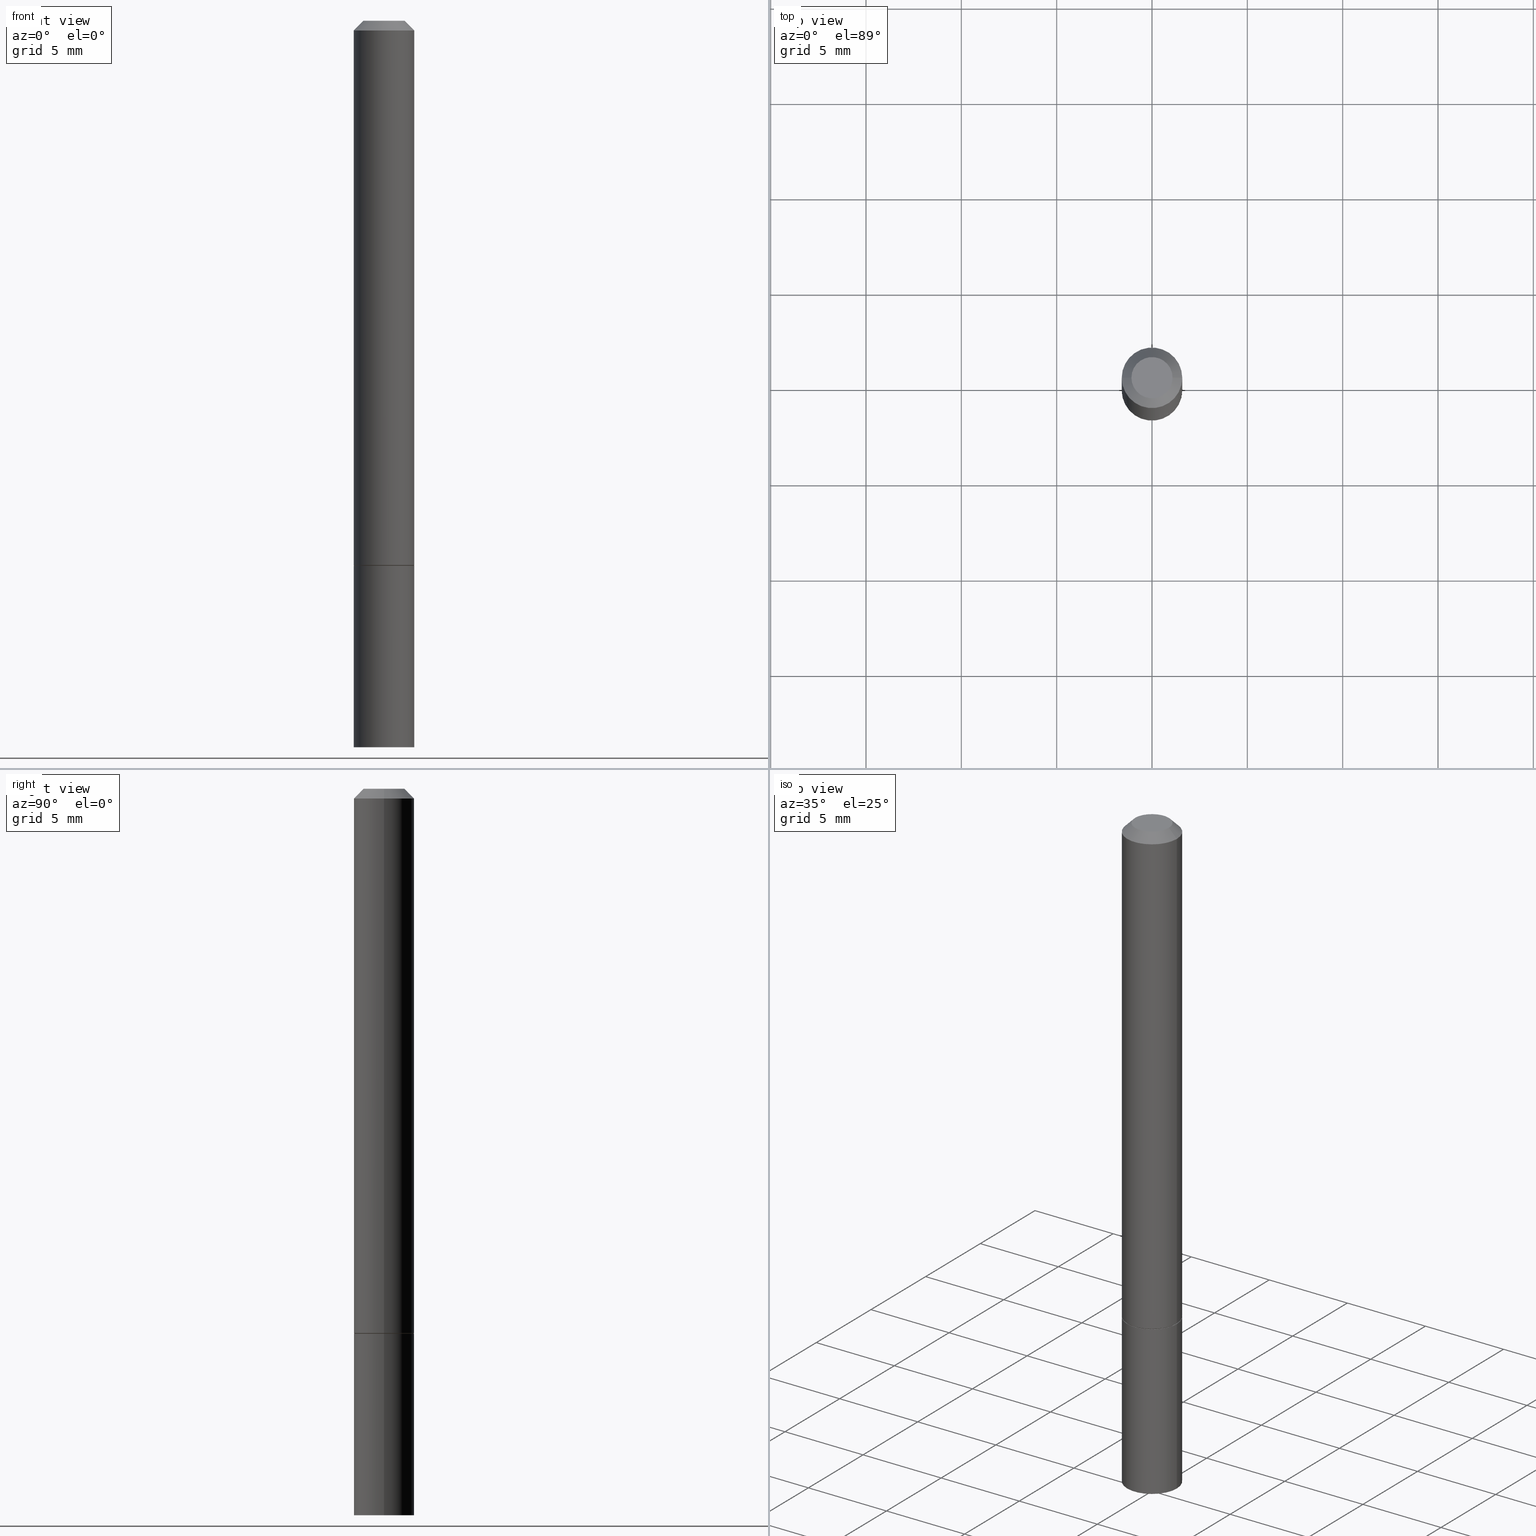
[diagram: canonical four-view strip — front | top / right | iso, engineering-drawing reading convention]
A machine part, canonical four-view strip (front | top / right | iso — engineering-drawing reading convention). The complete STEP part file that produces these views, byte-faithful:
ISO-10303-21;
HEADER;
FILE_DESCRIPTION (( 'STEP AP203' ),
    '1' );
FILE_NAME ('30377.STEP',
    '2024-02-27T12:39:30',
    ( '' ),
    ( '' ),
    'SwSTEP 2.0',
    'SolidWorks 2023',
    '' );
FILE_SCHEMA (( 'CONFIG_CONTROL_DESIGN' ));
ENDSEC;

DATA;
#1 = CARTESIAN_POINT ( 'NONE',  ( 2.967759138016655168E-16, 0.04249999999999988509, -1.761332880864859756E-16 ) ) ;
#2 = SECURITY_CLASSIFICATION_LEVEL ( 'unclassified' ) ;
#3 = DIMENSIONAL_EXPONENTS ( 1.000000000000000000, 0.000000000000000000, 0.000000000000000000, 0.000000000000000000, 0.000000000000000000, 0.000000000000000000, 0.000000000000000000 ) ;
#4 = LOCAL_TIME ( 7, 39, 30.00000000000000000, #174 ) ;
#5 = CARTESIAN_POINT ( 'NONE',  ( 4.890937612370294178E-31, -6.982962677686321191E-17, -0.02000000000000008715 ) ) ;
#6 = DATE_TIME_ROLE ( 'creation_date' ) ;
#7 = EDGE_CURVE ( 'NONE', #292, #16, #48, .T. ) ;
#8 = DIRECTION ( 'NONE',  ( -2.445468806185136597E-29, 3.491481338843145583E-15, 1.000000000000000000 ) ) ;
#9 = EDGE_CURVE ( 'NONE', #340, #45, #109, .T. ) ;
#10 = DIRECTION ( 'NONE',  ( 2.445468806185136597E-29, -3.491481338843145583E-15, -1.000000000000000000 ) ) ;
#11 = CIRCLE ( 'NONE', #43, 0.06250000000000001388 ) ;
#12 = CONICAL_SURFACE ( 'NONE', #318, 0.06150000000000001299, 0.7853981633974141952 ) ;
#13 = CARTESIAN_POINT ( 'NONE',  ( -0.06150000000000001299, -3.485634269357854820E-15, -1.124999999999999778 ) ) ;
#14 = ORIENTED_EDGE ( 'NONE', *, *, #286, .F. ) ;
#15 = CARTESIAN_POINT ( 'NONE',  ( 4.890937612370294178E-31, -6.982962677686321191E-17, -0.02000000000000008715 ) ) ;
#16 = VERTEX_POINT ( 'NONE', #194 ) ;
#17 = APPROVAL_PERSON_ORGANIZATION ( #215, #333, #233 ) ;
#18 = ORIENTED_EDGE ( 'NONE', *, *, #94, .F. ) ;
#19 = FACE_OUTER_BOUND ( 'NONE', #320, .T. ) ;
#20 = ADVANCED_FACE ( 'NONE', ( #160 ), #224, .F. ) ;
#21 = DIRECTION ( 'NONE',  ( -2.445468806185136877E-29, 3.491481338843145188E-15, 1.000000000000000000 ) ) ;
#22 = VERTEX_POINT ( 'NONE', #81 ) ;
#23 = CC_DESIGN_PERSON_AND_ORGANIZATION_ASSIGNMENT ( #342, #276, ( #258 ) ) ;
#24 = ORIENTED_EDGE ( 'NONE', *, *, #348, .T. ) ;
#25 = APPLICATION_PROTOCOL_DEFINITION ( 'international standard', 'config_control_design', 1994, #291 ) ;
#26 = FACE_OUTER_BOUND ( 'NONE', #243, .T. ) ;
#27 = ADVANCED_FACE ( 'NONE', ( #297 ), #103, .T. ) ;
#28 = CARTESIAN_POINT ( 'NONE',  ( 2.748706938152093068E-29, -3.924425024859694639E-15, -1.123999999999999888 ) ) ;
#29 = CARTESIAN_POINT ( 'NONE',  ( -0.06150000000000001299, -3.490932723706076827E-15, -1.124999999999999778 ) ) ;
#30 = DIRECTION ( 'NONE',  ( -2.445468806185136597E-29, 3.491481338843145583E-15, 1.000000000000000000 ) ) ;
#31 = VECTOR ( 'NONE', #290, 39.37007874015748143 ) ;
#32 = AXIS2_PLACEMENT_3D ( 'NONE', #102, #130, #300 ) ;
#33 =( LENGTH_UNIT ( ) NAMED_UNIT ( * ) SI_UNIT ( $, .METRE. ) );
#34 = CC_DESIGN_DATE_AND_TIME_ASSIGNMENT ( #37, #182, ( #144 ) ) ;
#35 = DIRECTION ( 'NONE',  ( -2.445468806185136597E-29, 3.491481338843145583E-15, 1.000000000000000000 ) ) ;
#36 = VERTEX_POINT ( 'NONE', #334 ) ;
#37 = DATE_AND_TIME ( #178, #343 ) ;
#38 = AXIS2_PLACEMENT_3D ( 'NONE', #260, #8, #125 ) ;
#39 = LOCAL_TIME ( 7, 39, 30.00000000000000000, #208 ) ;
#40 = SHAPE_DEFINITION_REPRESENTATION ( #205, #75 ) ;
#41 = FACE_OUTER_BOUND ( 'NONE', #46, .T. ) ;
#42 = CARTESIAN_POINT ( 'NONE',  ( 2.748706938152093068E-29, -3.924425024859694639E-15, -1.123999999999999888 ) ) ;
#43 = AXIS2_PLACEMENT_3D ( 'NONE', #301, #227, #325 ) ;
#44 = ORIENTED_EDGE ( 'NONE', *, *, #328, .F. ) ;
#45 = VERTEX_POINT ( 'NONE', #329 ) ;
#46 = EDGE_LOOP ( 'NONE', ( #67, #190 ) ) ;
#47 = DIRECTION ( 'NONE',  ( 2.445468806185136597E-29, -3.491481338843145583E-15, -1.000000000000000000 ) ) ;
#48 = LINE ( 'NONE', #217, #213 ) ;
#49 = CARTESIAN_POINT ( 'NONE',  ( -0.06249999999999988204, 3.666055405785276317E-16, -0.02000000000000008715 ) ) ;
#50 = FACE_OUTER_BOUND ( 'NONE', #347, .T. ) ;
#51 = DATE_AND_TIME ( #326, #167 ) ;
#52 = EDGE_CURVE ( 'NONE', #292, #264, #72, .T. ) ;
#53 = ADVANCED_FACE ( 'NONE', ( #172 ), #146, .T. ) ;
#54 = DIRECTION ( 'NONE',  ( 1.000000000000000000, -6.982962677686267499E-15, 4.876176775795935793E-29 ) ) ;
#55 = CONICAL_SURFACE ( 'NONE', #261, 0.06249999999999988204, 0.7853981633974473908 ) ;
#56 = CIRCLE ( 'NONE', #262, 0.06150000000000001299 ) ;
#57 = PERSON_AND_ORGANIZATION ( #281, #188 ) ;
#58 = ADVANCED_FACE ( 'NONE', ( #50 ), #250, .F. ) ;
#59 = MANIFOLD_SOLID_BREP ( 'Body-Move/Copy2[2]', #97 ) ;
#60 = PERSON_AND_ORGANIZATION ( #281, #188 ) ;
#61 = EDGE_CURVE ( 'NONE', #36, #248, #11, .T. ) ;
#62 = CALENDAR_DATE ( 2024, 27, 2 ) ;
#63 = DIRECTION ( 'NONE',  ( -2.445468806185136597E-29, 3.491481338843145583E-15, 1.000000000000000000 ) ) ;
#64 = PERSON_AND_ORGANIZATION ( #281, #188 ) ;
#65 = CARTESIAN_POINT ( 'NONE',  ( 2.751152406958278111E-29, -3.927916506198538435E-15, -1.124999999999999778 ) ) ;
#66 = DIRECTION ( 'NONE',  ( -2.445468806185136597E-29, 3.491481338843145583E-15, 1.000000000000000000 ) ) ;
#67 = ORIENTED_EDGE ( 'NONE', *, *, #272, .T. ) ;
#68 = EDGE_CURVE ( 'NONE', #207, #248, #363, .T. ) ;
#69 = DIRECTION ( 'NONE',  ( 0.7071067811865469066, -7.319954787623254468E-15, -0.7071067811865482389 ) ) ;
#70 = DIRECTION ( 'NONE',  ( 1.000000000000000000, -6.982962677686265922E-15, 4.876176775795935793E-29 ) ) ;
#71 = CC_DESIGN_PERSON_AND_ORGANIZATION_ASSIGNMENT ( #57, #204, ( #258 ) ) ;
#72 = CIRCLE ( 'NONE', #79, 0.06150000000000001299 ) ;
#73 = APPROVAL_PERSON_ORGANIZATION ( #359, #196, #118 ) ;
#74 = ORIENTED_EDGE ( 'NONE', *, *, #61, .T. ) ;
#75 = ADVANCED_BREP_SHAPE_REPRESENTATION ( '30377', ( #186, #59, #331 ), #153 ) ;
#76 = ORIENTED_EDGE ( 'NONE', *, *, #68, .F. ) ;
#77 = DIRECTION ( 'NONE',  ( -1.000000000000000000, 6.982962677686266711E-15, 0.000000000000000000 ) ) ;
#78 = ORIENTED_EDGE ( 'NONE', *, *, #141, .T. ) ;
#79 = AXIS2_PLACEMENT_3D ( 'NONE', #87, #30, #84 ) ;
#80 = CC_DESIGN_APPROVAL ( #333, ( #144 ) ) ;
#81 = CARTESIAN_POINT ( 'NONE',  ( 0.06249999999999988204, -4.986107516375831334E-16, -0.02000000000000008715 ) ) ;
#82 = LINE ( 'NONE', #29, #112 ) ;
#83 = CARTESIAN_POINT ( 'NONE',  ( 0.000000000000000000, 0.000000000000000000, 0.000000000000000000 ) ) ;
#84 = DIRECTION ( 'NONE',  ( 1.000000000000000000, -6.982962677686268288E-15, 0.000000000000000000 ) ) ;
#85 = DIRECTION ( 'NONE',  ( 0.000000000000000000, 0.000000000000000000, 1.000000000000000000 ) ) ;
#86 = UNCERTAINTY_MEASURE_WITH_UNIT (LENGTH_MEASURE( 1.000000000000000082E-05 ), #335, 'distance_accuracy_value', 'NONE');
#87 = CARTESIAN_POINT ( 'NONE',  ( 2.751152406958278111E-29, -3.927916506198538435E-15, -1.124999999999999778 ) ) ;
#88 = ADVANCED_FACE ( 'NONE', ( #26 ), #55, .T. ) ;
#89 = MECHANICAL_CONTEXT ( 'NONE', #330, 'mechanical' ) ;
#90 = DIRECTION ( 'NONE',  ( 1.000000000000000000, -6.982962677686269077E-15, 0.000000000000000000 ) ) ;
#91 = AXIS2_PLACEMENT_3D ( 'NONE', #65, #66, #90 ) ;
#92 = CC_DESIGN_SECURITY_CLASSIFICATION ( #144, ( #258 ) ) ;
#93 = ORIENTED_EDGE ( 'NONE', *, *, #206, .F. ) ;
#94 = EDGE_CURVE ( 'NONE', #105, #340, #317, .T. ) ;
#95 = CARTESIAN_POINT ( 'NONE',  ( 0.04249999999999988509, -3.950909582714363501E-16, -5.549066237130292766E-17 ) ) ;
#96 = APPROVAL_STATUS ( 'not_yet_approved' ) ;
#97 = CLOSED_SHELL ( 'NONE', ( #163, #53, #88, #229, #151, #313, #20, #192 ) ) ;
#98 = AXIS2_PLACEMENT_3D ( 'NONE', #1, #121, #202 ) ;
#99 = DIRECTION ( 'NONE',  ( -2.445468806185136877E-29, 3.491481338843145188E-15, 1.000000000000000000 ) ) ;
#100 = ORIENTED_EDGE ( 'NONE', *, *, #286, .T. ) ;
#101 = EDGE_CURVE ( 'NONE', #319, #207, #152, .T. ) ;
#102 = CARTESIAN_POINT ( 'NONE',  ( 1.357006838635785746E-45, -1.937446121494581442E-31, -5.549066237130534971E-17 ) ) ;
#103 = CYLINDRICAL_SURFACE ( 'NONE', #238, 0.06250000000000001388 ) ;
#104 = AXIS2_PLACEMENT_3D ( 'NONE', #210, #35, #177 ) ;
#105 = VERTEX_POINT ( 'NONE', #95 ) ;
#106 = DIRECTION ( 'NONE',  ( -2.445468806185136597E-29, 3.491481338843145583E-15, 1.000000000000000000 ) ) ;
#107 = EDGE_CURVE ( 'NONE', #248, #36, #356, .T. ) ;
#108 = EDGE_LOOP ( 'NONE', ( #131, #354 ) ) ;
#109 = LINE ( 'NONE', #49, #31 ) ;
#110 = PERSON_AND_ORGANIZATION_ROLE ( 'creator' ) ;
#111 = AXIS2_PLACEMENT_3D ( 'NONE', #180, #124, #278 ) ;
#112 = VECTOR ( 'NONE', #195, 39.37007874015748854 ) ;
#113 = DIRECTION ( 'NONE',  ( -1.000000000000000000, 6.982962677686265922E-15, -4.876176775795935793E-29 ) ) ;
#114 = COORDINATED_UNIVERSAL_TIME_OFFSET ( 5, 0, .BEHIND. ) ;
#115 = CC_DESIGN_PERSON_AND_ORGANIZATION_ASSIGNMENT ( #64, #236, ( #144 ) ) ;
#116 = CARTESIAN_POINT ( 'NONE',  ( 2.751152406958278111E-29, -3.927916506198538435E-15, -1.124999999999999778 ) ) ;
#117 = CARTESIAN_POINT ( 'NONE',  ( 0.000000000000000000, 0.000000000000000000, 0.000000000000000000 ) ) ;
#118 = APPROVAL_ROLE ( '' ) ;
#119 = APPROVAL_DATE_TIME ( #283, #211 ) ;
#120 = DESIGN_CONTEXT ( 'detailed design', #291, 'design' ) ;
#121 = DIRECTION ( 'NONE',  ( 2.438088387897960049E-29, -3.491481338843145188E-15, -1.000000000000000000 ) ) ;
#122 = DIRECTION ( 'NONE',  ( 1.000000000000000000, -6.982962677686261189E-15, 0.000000000000000000 ) ) ;
#123 = EDGE_CURVE ( 'NONE', #22, #45, #257, .T. ) ;
#124 = DIRECTION ( 'NONE',  ( -2.445468806185136597E-29, 3.491481338843145583E-15, 1.000000000000000000 ) ) ;
#125 = DIRECTION ( 'NONE',  ( 1.000000000000000000, -6.982962677686266711E-15, 4.876176775795935793E-29 ) ) ;
#126 = CARTESIAN_POINT ( 'NONE',  ( 2.751152406958278111E-29, -3.927916506198538435E-15, -1.124999999999999778 ) ) ;
#127 = AXIS2_PLACEMENT_3D ( 'NONE', #176, #357, #113 ) ;
#128 = CC_DESIGN_PERSON_AND_ORGANIZATION_ASSIGNMENT ( #355, #110, ( #223 ) ) ;
#129 = ORIENTED_EDGE ( 'NONE', *, *, #52, .F. ) ;
#130 = DIRECTION ( 'NONE',  ( -2.445468806185136597E-29, 3.491481338843145583E-15, 1.000000000000000000 ) ) ;
#131 = ORIENTED_EDGE ( 'NONE', *, *, #137, .F. ) ;
#132 = CARTESIAN_POINT ( 'NONE',  ( 0.06250000000000001388, -5.673657175620109057E-15, -1.499999999999999778 ) ) ;
#133 = VECTOR ( 'NONE', #69, 39.37007874015748143 ) ;
#134 = ORIENTED_EDGE ( 'NONE', *, *, #328, .T. ) ;
#135 = DIRECTION ( 'NONE',  ( 1.000000000000000000, -6.982962677686268288E-15, 0.000000000000000000 ) ) ;
#136 = EDGE_LOOP ( 'NONE', ( #129, #189 ) ) ;
#137 = EDGE_CURVE ( 'NONE', #207, #319, #288, .T. ) ;
#138 = ORIENTED_EDGE ( 'NONE', *, *, #200, .T. ) ;
#139 = CARTESIAN_POINT ( 'NONE',  ( -0.04249999999999988509, 3.316907271900965249E-16, -5.549066237130754373E-17 ) ) ;
#140 = CIRCLE ( 'NONE', #148, 0.06249999999999988204 ) ;
#141 = EDGE_CURVE ( 'NONE', #45, #22, #140, .T. ) ;
#142 = FACE_OUTER_BOUND ( 'NONE', #315, .T. ) ;
#143 = DIRECTION ( 'NONE',  ( 2.438088387897960049E-29, -3.491481338843145188E-15, -1.000000000000000000 ) ) ;
#144 = SECURITY_CLASSIFICATION ( '', '', #2 ) ;
#145 = APPROVAL_DATE_TIME ( #274, #196 ) ;
#146 = CYLINDRICAL_SURFACE ( 'NONE', #201, 0.06249999999999995143 ) ;
#147 = COORDINATED_UNIVERSAL_TIME_OFFSET ( 5, 0, .BEHIND. ) ;
#148 = AXIS2_PLACEMENT_3D ( 'NONE', #184, #63, #282 ) ;
#149 = VECTOR ( 'NONE', #360, 39.37007874015748143 ) ;
#150 = FACE_OUTER_BOUND ( 'NONE', #191, .T. ) ;
#151 = ADVANCED_FACE ( 'NONE', ( #150 ), #284, .T. ) ;
#152 = CIRCLE ( 'NONE', #316, 0.06250000000000001388 ) ;
#153 =( GEOMETRIC_REPRESENTATION_CONTEXT ( 3 ) GLOBAL_UNCERTAINTY_ASSIGNED_CONTEXT ( ( #86 ) ) GLOBAL_UNIT_ASSIGNED_CONTEXT ( ( #335, #225, #298 ) ) REPRESENTATION_CONTEXT ( 'NONE', 'WORKASPACE' ) );
#154 = DIRECTION ( 'NONE',  ( -2.445468806185136597E-29, 3.491481338843145583E-15, 1.000000000000000000 ) ) ;
#155 = ORIENTED_EDGE ( 'NONE', *, *, #200, .F. ) ;
#156 = ORIENTED_EDGE ( 'NONE', *, *, #107, .F. ) ;
#157 = DIRECTION ( 'NONE',  ( 1.000000000000000000, -6.982962677686269077E-15, 0.000000000000000000 ) ) ;
#158 = ORIENTED_EDGE ( 'NONE', *, *, #206, .T. ) ;
#159 = AXIS2_PLACEMENT_3D ( 'NONE', #116, #198, #271 ) ;
#160 = FACE_OUTER_BOUND ( 'NONE', #136, .T. ) ;
#161 = ORIENTED_EDGE ( 'NONE', *, *, #123, .T. ) ;
#162 = FACE_OUTER_BOUND ( 'NONE', #108, .T. ) ;
#163 = ADVANCED_FACE ( 'NONE', ( #235 ), #12, .T. ) ;
#164 = CARTESIAN_POINT ( 'NONE',  ( 0.06250000000000001388, -4.364351673553918173E-16, 3.047610484872460571E-30 ) ) ;
#165 = LINE ( 'NONE', #199, #149 ) ;
#166 = VECTOR ( 'NONE', #170, 39.37007874015748143 ) ;
#167 = LOCAL_TIME ( 7, 39, 30.00000000000000000, #114 ) ;
#168 = CIRCLE ( 'NONE', #323, 0.06250000000000001388 ) ;
#169 = EDGE_CURVE ( 'NONE', #319, #36, #212, .T. ) ;
#170 = DIRECTION ( 'NONE',  ( -2.445468806185136877E-29, 3.491481338843145188E-15, 1.000000000000000000 ) ) ;
#171 = APPROVAL_STATUS ( 'not_yet_approved' ) ;
#172 = FACE_OUTER_BOUND ( 'NONE', #216, .T. ) ;
#173 = DIRECTION ( 'NONE',  ( 1.000000000000000000, -6.982962677686269077E-15, 0.000000000000000000 ) ) ;
#174 = COORDINATED_UNIVERSAL_TIME_OFFSET ( 5, 0, .BEHIND. ) ;
#175 = CIRCLE ( 'NONE', #32, 0.04249999999999988509 ) ;
#176 = CARTESIAN_POINT ( 'NONE',  ( 4.364351673554192795E-16, 0.06249999999999608646, -1.125000000000000222 ) ) ;
#177 = DIRECTION ( 'NONE',  ( 1.000000000000000000, -6.982962677686266711E-15, 0.000000000000000000 ) ) ;
#178 = CALENDAR_DATE ( 2024, 27, 2 ) ;
#179 = ORIENTED_EDGE ( 'NONE', *, *, #9, .T. ) ;
#180 = CARTESIAN_POINT ( 'NONE',  ( 1.357006838635785746E-45, -1.937446121494581442E-31, -5.549066237130534971E-17 ) ) ;
#181 = CIRCLE ( 'NONE', #338, 0.06250000000000001388 ) ;
#182 = DATE_TIME_ROLE ( 'classification_date' ) ;
#183 = DIRECTION ( 'NONE',  ( -2.445468806185136597E-29, 3.491481338843145583E-15, 1.000000000000000000 ) ) ;
#184 = CARTESIAN_POINT ( 'NONE',  ( 4.890937612370294178E-31, -6.982962677686321191E-17, -0.02000000000000008715 ) ) ;
#185 = ORIENTED_EDGE ( 'NONE', *, *, #107, .T. ) ;
#186 = MANIFOLD_SOLID_BREP ( 'Body-Move/Copy2[1]', #364 ) ;
#187 = ORIENTED_EDGE ( 'NONE', *, *, #169, .F. ) ;
#188 = ORGANIZATION ( 'UNSPECIFIED', 'UNSPECIFIED', '' ) ;
#189 = ORIENTED_EDGE ( 'NONE', *, *, #244, .F. ) ;
#190 = ORIENTED_EDGE ( 'NONE', *, *, #94, .T. ) ;
#191 = EDGE_LOOP ( 'NONE', ( #155, #158, #100, #344 ) ) ;
#192 = ADVANCED_FACE ( 'NONE', ( #41 ), #254, .F. ) ;
#193 = LOCAL_TIME ( 7, 39, 30.00000000000000000, #147 ) ;
#194 = CARTESIAN_POINT ( 'NONE',  ( 0.06250000000000001388, -4.360860192215086309E-15, -1.123999999999999888 ) ) ;
#195 = DIRECTION ( 'NONE',  ( -0.7071067811865232589, 7.493145998870265808E-15, 0.7071067811865715536 ) ) ;
#196 = APPROVAL ( #171, 'UNSPECIFIED' ) ;
#197 = DIRECTION ( 'NONE',  ( 1.000000000000000000, 0.000000000000000000, 0.000000000000000000 ) ) ;
#198 = DIRECTION ( 'NONE',  ( -2.445468806185136597E-29, 3.491481338843145583E-15, 1.000000000000000000 ) ) ;
#199 = CARTESIAN_POINT ( 'NONE',  ( 0.06249999999999995143, -4.364351673553913243E-16, 3.047610484872457418E-30 ) ) ;
#200 = EDGE_CURVE ( 'NONE', #245, #45, #308, .T. ) ;
#201 = AXIS2_PLACEMENT_3D ( 'NONE', #83, #299, #336 ) ;
#202 = DIRECTION ( 'NONE',  ( -1.000000000000000000, 6.982962677686265922E-15, -4.876176775795935793E-29 ) ) ;
#203 = ORIENTED_EDGE ( 'NONE', *, *, #253, .F. ) ;
#204 = PERSON_AND_ORGANIZATION_ROLE ( 'creator' ) ;
#205 = PRODUCT_DEFINITION_SHAPE ( 'NONE', 'NONE',  #223 ) ;
#206 = EDGE_CURVE ( 'NONE', #245, #16, #181, .T. ) ;
#207 = VERTEX_POINT ( 'NONE', #132 ) ;
#208 = COORDINATED_UNIVERSAL_TIME_OFFSET ( 5, 0, .BEHIND. ) ;
#209 = ADVANCED_FACE ( 'NONE', ( #219 ), #350, .T. ) ;
#210 = CARTESIAN_POINT ( 'NONE',  ( 4.890937612370294178E-31, -6.982962677686321191E-17, -0.02000000000000008715 ) ) ;
#211 = APPROVAL ( #96, 'UNSPECIFIED' ) ;
#212 = LINE ( 'NONE', #311, #242 ) ;
#213 = VECTOR ( 'NONE', #247, 39.37007874015748854 ) ;
#214 = AXIS2_PLACEMENT_3D ( 'NONE', #15, #47, #77 ) ;
#215 = PERSON_AND_ORGANIZATION ( #281, #188 ) ;
#216 = EDGE_LOOP ( 'NONE', ( #24, #138, #218, #14 ) ) ;
#217 = CARTESIAN_POINT ( 'NONE',  ( 0.06150000000000001299, -4.357368710876244090E-15, -1.124999999999999778 ) ) ;
#218 = ORIENTED_EDGE ( 'NONE', *, *, #123, .F. ) ;
#219 = FACE_OUTER_BOUND ( 'NONE', #222, .T. ) ;
#220 = ORIENTED_EDGE ( 'NONE', *, *, #61, .F. ) ;
#221 = DIRECTION ( 'NONE',  ( 1.000000000000000000, -6.982962677686267499E-15, 4.876176775795935793E-29 ) ) ;
#222 = EDGE_LOOP ( 'NONE', ( #187, #263, #345, #220 ) ) ;
#223 = PRODUCT_DEFINITION ( 'UNKNOWN', '', #258, #120 ) ;
#224 = PLANE ( 'NONE',  #307 ) ;
#225 =( NAMED_UNIT ( * ) PLANE_ANGLE_UNIT ( ) SI_UNIT ( $, .RADIAN. ) );
#226 = CONICAL_SURFACE ( 'NONE', #214, 0.06249999999999988204, 0.7853981633974473908 ) ;
#227 = DIRECTION ( 'NONE',  ( -2.445468806185136597E-29, 3.491481338843145583E-15, 1.000000000000000000 ) ) ;
#228 = CARTESIAN_POINT ( 'NONE',  ( 0.000000000000000000, 0.000000000000000000, 0.000000000000000000 ) ) ;
#229 = ADVANCED_FACE ( 'NONE', ( #19 ), #226, .T. ) ;
#230 = PLANE ( 'NONE',  #239 ) ;
#231 = CALENDAR_DATE ( 2024, 27, 2 ) ;
#232 = DATE_AND_TIME ( #62, #193 ) ;
#233 = APPROVAL_ROLE ( '' ) ;
#234 = DIRECTION ( 'NONE',  ( -1.000000000000000000, 6.982962677686266711E-15, 0.000000000000000000 ) ) ;
#235 = FACE_OUTER_BOUND ( 'NONE', #279, .T. ) ;
#236 = PERSON_AND_ORGANIZATION_ROLE ( 'classification_officer' ) ;
#237 = DIRECTION ( 'NONE',  ( 1.000000000000000000, -6.982962677686268288E-15, 0.000000000000000000 ) ) ;
#238 = AXIS2_PLACEMENT_3D ( 'NONE', #117, #252, #54 ) ;
#239 = AXIS2_PLACEMENT_3D ( 'NONE', #303, #143, #332 ) ;
#240 = ORIENTED_EDGE ( 'NONE', *, *, #253, .T. ) ;
#241 = ORIENTED_EDGE ( 'NONE', *, *, #7, .F. ) ;
#242 = VECTOR ( 'NONE', #99, 39.37007874015748143 ) ;
#243 = EDGE_LOOP ( 'NONE', ( #18, #240, #161, #266 ) ) ;
#244 = EDGE_CURVE ( 'NONE', #264, #292, #56, .T. ) ;
#245 = VERTEX_POINT ( 'NONE', #352 ) ;
#246 = DIRECTION ( 'NONE',  ( -2.445468806185136597E-29, 3.491481338843145583E-15, 1.000000000000000000 ) ) ;
#247 = DIRECTION ( 'NONE',  ( 0.7071067811865232589, -2.468850131082003836E-15, 0.7071067811865715536 ) ) ;
#248 = VERTEX_POINT ( 'NONE', #296 ) ;
#249 = LENGTH_MEASURE_WITH_UNIT ( LENGTH_MEASURE( 0.02539999999999999897 ), #33 );
#250 = PLANE ( 'NONE',  #127 ) ;
#251 = CC_DESIGN_APPROVAL ( #196, ( #223 ) ) ;
#252 = DIRECTION ( 'NONE',  ( -2.445468806185136597E-29, 3.491481338843145583E-15, 1.000000000000000000 ) ) ;
#253 = EDGE_CURVE ( 'NONE', #105, #22, #346, .T. ) ;
#254 = PLANE ( 'NONE',  #98 ) ;
#255 = CARTESIAN_POINT ( 'NONE',  ( -0.06249999999999995143, 4.440892098500622710E-16, -3.074334431409313661E-30 ) ) ;
#256 = CALENDAR_DATE ( 2024, 27, 2 ) ;
#257 = CIRCLE ( 'NONE', #104, 0.06249999999999988204 ) ;
#258 = PRODUCT_DEFINITION_FORMATION_WITH_SPECIFIED_SOURCE ( 'ANY', '', #273, .NOT_KNOWN. ) ;
#259 = APPROVAL_STATUS ( 'not_yet_approved' ) ;
#260 = CARTESIAN_POINT ( 'NONE',  ( 0.000000000000000000, 0.000000000000000000, 0.000000000000000000 ) ) ;
#261 = AXIS2_PLACEMENT_3D ( 'NONE', #5, #10, #234 ) ;
#262 = AXIS2_PLACEMENT_3D ( 'NONE', #293, #246, #135 ) ;
#263 = ORIENTED_EDGE ( 'NONE', *, *, #101, .T. ) ;
#264 = VERTEX_POINT ( 'NONE', #13 ) ;
#265 = CARTESIAN_POINT ( 'NONE',  ( 0.000000000000000000, 0.000000000000000000, 0.000000000000000000 ) ) ;
#266 = ORIENTED_EDGE ( 'NONE', *, *, #9, .F. ) ;
#267 = ORIENTED_EDGE ( 'NONE', *, *, #52, .T. ) ;
#268 = CARTESIAN_POINT ( 'NONE',  ( 2.751152406958278111E-29, -3.927916506198538435E-15, -1.124999999999999778 ) ) ;
#269 = DIRECTION ( 'NONE',  ( -2.445468806185136597E-29, 3.491481338843145583E-15, 1.000000000000000000 ) ) ;
#270 = CONICAL_SURFACE ( 'NONE', #159, 0.06150000000000001299, 0.7853981633974141952 ) ;
#271 = DIRECTION ( 'NONE',  ( 1.000000000000000000, -6.982962677686268288E-15, 0.000000000000000000 ) ) ;
#272 = EDGE_CURVE ( 'NONE', #340, #105, #175, .T. ) ;
#273 = PRODUCT ( '30377', '30377', '', ( #89 ) ) ;
#274 = DATE_AND_TIME ( #231, #4 ) ;
#275 = AXIS2_PLACEMENT_3D ( 'NONE', #265, #106, #221 ) ;
#276 = PERSON_AND_ORGANIZATION_ROLE ( 'design_supplier' ) ;
#277 = DIRECTION ( 'NONE',  ( 1.000000000000000000, -6.982962677686261189E-15, 0.000000000000000000 ) ) ;
#278 = DIRECTION ( 'NONE',  ( 1.000000000000000000, -6.982962677686267499E-15, 4.870577812114097619E-29 ) ) ;
#279 = EDGE_LOOP ( 'NONE', ( #267, #134, #321, #241 ) ) ;
#280 = COORDINATED_UNIVERSAL_TIME_OFFSET ( 5, 0, .BEHIND. ) ;
#281 = PERSON ( 'UNSPECIFIED', 'UNSPECIFIED', 'UNSPECIFIED', ('UNSPECIFIED'), ('UNSPECIFIED'), ('UNSPECIFIED') ) ;
#282 = DIRECTION ( 'NONE',  ( 1.000000000000000000, -6.982962677686266711E-15, 0.000000000000000000 ) ) ;
#283 = DATE_AND_TIME ( #256, #39 ) ;
#284 = CYLINDRICAL_SURFACE ( 'NONE', #38, 0.06249999999999995143 ) ;
#285 = DIRECTION ( 'NONE',  ( -2.445468806185136597E-29, 3.491481338843145583E-15, 1.000000000000000000 ) ) ;
#286 = EDGE_CURVE ( 'NONE', #16, #22, #165, .T. ) ;
#287 = CC_DESIGN_DATE_AND_TIME_ASSIGNMENT ( #51, #6, ( #223 ) ) ;
#288 = CIRCLE ( 'NONE', #302, 0.06250000000000001388 ) ;
#289 = ORIENTED_EDGE ( 'NONE', *, *, #137, .T. ) ;
#290 = DIRECTION ( 'NONE',  ( -0.7071067811865469066, 2.468850131082249961E-15, -0.7071067811865482389 ) ) ;
#291 = APPLICATION_CONTEXT ( 'configuration controlled 3d designs of mechanical parts and assemblies' ) ;
#292 = VERTEX_POINT ( 'NONE', #361 ) ;
#293 = CARTESIAN_POINT ( 'NONE',  ( 2.751152406958278111E-29, -3.927916506198538435E-15, -1.124999999999999778 ) ) ;
#294 = ORIENTED_EDGE ( 'NONE', *, *, #244, .T. ) ;
#295 = APPROVAL_PERSON_ORGANIZATION ( #60, #211, #306 ) ;
#296 = CARTESIAN_POINT ( 'NONE',  ( 0.06250000000000001388, -4.364351673553930105E-15, -1.124999999999999778 ) ) ;
#297 = FACE_OUTER_BOUND ( 'NONE', #349, .T. ) ;
#298 =( NAMED_UNIT ( * ) SI_UNIT ( $, .STERADIAN. ) SOLID_ANGLE_UNIT ( ) );
#299 = DIRECTION ( 'NONE',  ( -2.445468806185136597E-29, 3.491481338843145583E-15, 1.000000000000000000 ) ) ;
#300 = DIRECTION ( 'NONE',  ( 1.000000000000000000, -6.982962677686267499E-15, 4.870577812114097619E-29 ) ) ;
#301 = CARTESIAN_POINT ( 'NONE',  ( 2.751152406958278111E-29, -3.927916506198538435E-15, -1.124999999999999778 ) ) ;
#302 = AXIS2_PLACEMENT_3D ( 'NONE', #310, #183, #277 ) ;
#303 = CARTESIAN_POINT ( 'NONE',  ( 4.364351673554284500E-16, 0.06249999999999478195, -1.500000000000000222 ) ) ;
#304 = PRODUCT_RELATED_PRODUCT_CATEGORY ( 'detail', '', ( #273 ) ) ;
#305 = CARTESIAN_POINT ( 'NONE',  ( -0.06250000000000001388, -4.138480047381564901E-15, -1.499999999999999778 ) ) ;
#306 = APPROVAL_ROLE ( '' ) ;
#307 = AXIS2_PLACEMENT_3D ( 'NONE', #268, #322, #70 ) ;
#308 = LINE ( 'NONE', #255, #365 ) ;
#309 = ORIENTED_EDGE ( 'NONE', *, *, #169, .T. ) ;
#310 = CARTESIAN_POINT ( 'NONE',  ( 3.668203209277704335E-29, -5.237222008264717388E-15, -1.499999999999999778 ) ) ;
#311 = CARTESIAN_POINT ( 'NONE',  ( -0.06250000000000001388, 4.440892098500627148E-16, -3.074334431409317165E-30 ) ) ;
#312 = ORIENTED_EDGE ( 'NONE', *, *, #272, .F. ) ;
#313 = ADVANCED_FACE ( 'NONE', ( #142 ), #270, .T. ) ;
#314 = CARTESIAN_POINT ( 'NONE',  ( 0.06249999999999988204, -4.986107516375831334E-16, -0.02000000000000008715 ) ) ;
#315 = EDGE_LOOP ( 'NONE', ( #44, #294, #351, #93 ) ) ;
#316 = AXIS2_PLACEMENT_3D ( 'NONE', #339, #341, #122 ) ;
#317 = CIRCLE ( 'NONE', #111, 0.04249999999999988509 ) ;
#318 = AXIS2_PLACEMENT_3D ( 'NONE', #126, #285, #237 ) ;
#319 = VERTEX_POINT ( 'NONE', #305 ) ;
#320 = EDGE_LOOP ( 'NONE', ( #203, #312, #179, #78 ) ) ;
#321 = ORIENTED_EDGE ( 'NONE', *, *, #348, .F. ) ;
#322 = DIRECTION ( 'NONE',  ( -2.438088387897960049E-29, 3.491481338843145188E-15, 1.000000000000000000 ) ) ;
#323 = AXIS2_PLACEMENT_3D ( 'NONE', #28, #269, #173 ) ;
#324 = PERSON_AND_ORGANIZATION ( #281, #188 ) ;
#325 = DIRECTION ( 'NONE',  ( 1.000000000000000000, -6.982962677686269077E-15, 0.000000000000000000 ) ) ;
#326 = CALENDAR_DATE ( 2024, 27, 2 ) ;
#327 = APPLICATION_PROTOCOL_DEFINITION ( 'international standard', 'config_control_design', 1994, #330 ) ;
#328 = EDGE_CURVE ( 'NONE', #264, #245, #82, .T. ) ;
#329 = CARTESIAN_POINT ( 'NONE',  ( -0.06249999999999988204, 3.666055405785276317E-16, -0.02000000000000008715 ) ) ;
#330 = APPLICATION_CONTEXT ( 'configuration controlled 3d designs of mechanical parts and assemblies' ) ;
#331 = AXIS2_PLACEMENT_3D ( 'NONE', #228, #85, #197 ) ;
#332 = DIRECTION ( 'NONE',  ( -1.000000000000000000, 6.982962677686265922E-15, -4.876176775795935793E-29 ) ) ;
#333 = APPROVAL ( #259, 'UNSPECIFIED' ) ;
#334 = CARTESIAN_POINT ( 'NONE',  ( -0.06250000000000001388, -4.138480047381564901E-15, -1.124999999999999778 ) ) ;
#335 =( CONVERSION_BASED_UNIT ( 'INCH', #249 ) LENGTH_UNIT ( ) NAMED_UNIT ( #3 ) );
#336 = DIRECTION ( 'NONE',  ( 1.000000000000000000, -6.982962677686266711E-15, 4.876176775795935793E-29 ) ) ;
#337 = APPROVAL_DATE_TIME ( #232, #333 ) ;
#338 = AXIS2_PLACEMENT_3D ( 'NONE', #42, #154, #157 ) ;
#339 = CARTESIAN_POINT ( 'NONE',  ( 3.668203209277704335E-29, -5.237222008264717388E-15, -1.499999999999999778 ) ) ;
#340 = VERTEX_POINT ( 'NONE', #139 ) ;
#341 = DIRECTION ( 'NONE',  ( -2.445468806185136597E-29, 3.491481338843145583E-15, 1.000000000000000000 ) ) ;
#342 = PERSON_AND_ORGANIZATION ( #281, #188 ) ;
#343 = LOCAL_TIME ( 7, 39, 30.00000000000000000, #280 ) ;
#344 = ORIENTED_EDGE ( 'NONE', *, *, #141, .F. ) ;
#345 = ORIENTED_EDGE ( 'NONE', *, *, #68, .T. ) ;
#346 = LINE ( 'NONE', #314, #133 ) ;
#347 = EDGE_LOOP ( 'NONE', ( #185, #74 ) ) ;
#348 = EDGE_CURVE ( 'NONE', #16, #245, #168, .T. ) ;
#349 = EDGE_LOOP ( 'NONE', ( #289, #309, #156, #76 ) ) ;
#350 = CYLINDRICAL_SURFACE ( 'NONE', #275, 0.06250000000000001388 ) ;
#351 = ORIENTED_EDGE ( 'NONE', *, *, #7, .T. ) ;
#352 = CARTESIAN_POINT ( 'NONE',  ( -0.06250000000000001388, -1.553038115968214380E-15, -1.123999999999999888 ) ) ;
#353 = ADVANCED_FACE ( 'NONE', ( #162 ), #230, .T. ) ;
#354 = ORIENTED_EDGE ( 'NONE', *, *, #101, .F. ) ;
#355 = PERSON_AND_ORGANIZATION ( #281, #188 ) ;
#356 = CIRCLE ( 'NONE', #91, 0.06250000000000001388 ) ;
#357 = DIRECTION ( 'NONE',  ( 2.438088387897960049E-29, -3.491481338843145188E-15, -1.000000000000000000 ) ) ;
#358 = CC_DESIGN_APPROVAL ( #211, ( #258 ) ) ;
#359 = PERSON_AND_ORGANIZATION ( #281, #188 ) ;
#360 = DIRECTION ( 'NONE',  ( -2.445468806185136877E-29, 3.491481338843145188E-15, 1.000000000000000000 ) ) ;
#361 = CARTESIAN_POINT ( 'NONE',  ( 0.06150000000000001299, -4.357368710876244090E-15, -1.124999999999999778 ) ) ;
#362 = CC_DESIGN_PERSON_AND_ORGANIZATION_ASSIGNMENT ( #324, #366, ( #273 ) ) ;
#363 = LINE ( 'NONE', #164, #166 ) ;
#364 = CLOSED_SHELL ( 'NONE', ( #27, #353, #58, #209 ) ) ;
#365 = VECTOR ( 'NONE', #21, 39.37007874015748143 ) ;
#366 = PERSON_AND_ORGANIZATION_ROLE ( 'design_owner' ) ;
ENDSEC;
END-ISO-10303-21;
